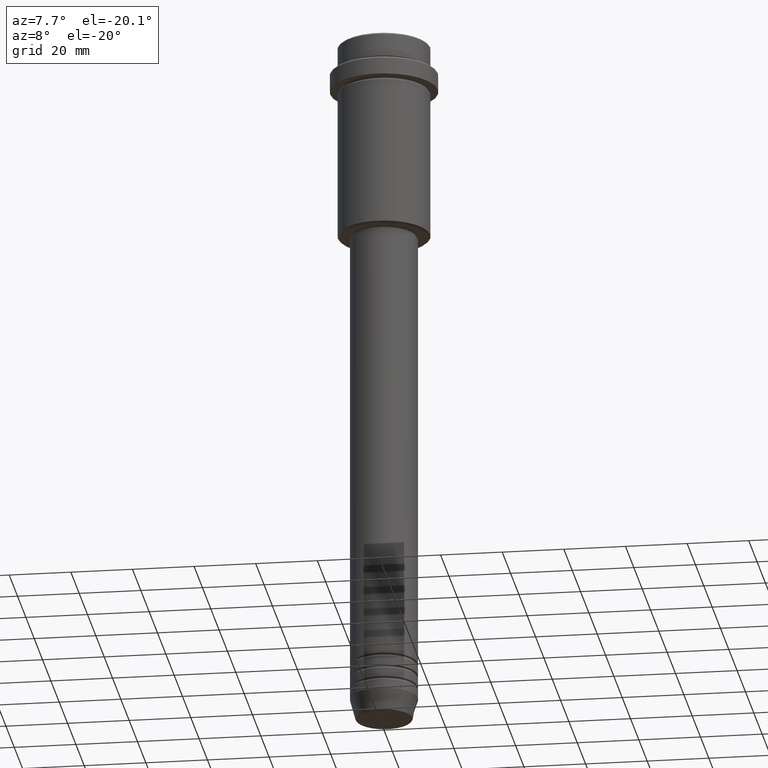
[diagram: clean part render]
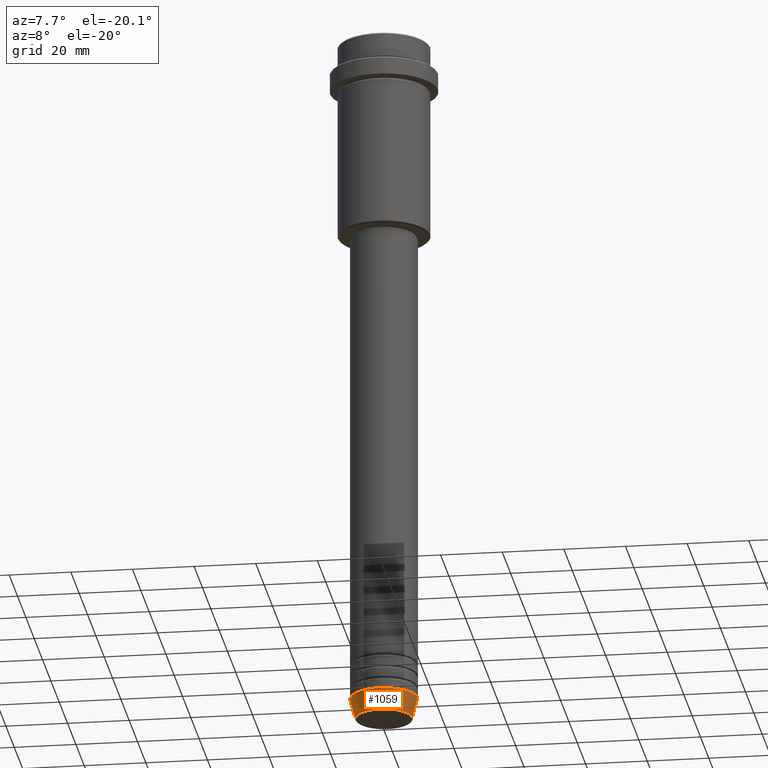
[diagram: same view with one face highlighted and labeled with its STEP entity id]
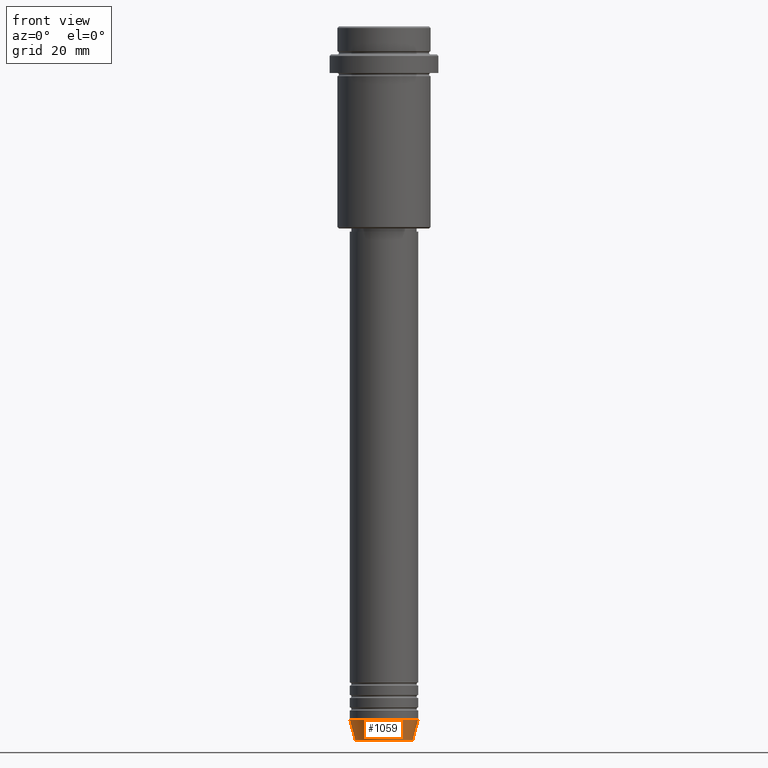
[diagram: same view with one face highlighted and labeled with its STEP entity id]
A machine part, auxiliary view. The second image highlights one B-rep face of the part: STEP entity #1059.
A second angle (front view) of the same face is appended — the face is thin or edge-on in the first view.
In plain terms, the highlighted conical surface has half-angle 15 deg.
Its self-contained STEP definition (entity closure, byte-faithful):
#108 = CONICAL_SURFACE ( 'NONE', #672, 11.00000000000000000, 0.2617993877991500740 ) ;
#134 = CARTESIAN_POINT ( 'NONE',  ( 9.223655072137196598, 0.000000000000000000, -229.6294095225512706 ) ) ;
#144 = ORIENTED_EDGE ( 'NONE', *, *, #183, .T. ) ;
#183 = EDGE_CURVE ( 'NONE', #1211, #1245, #1274, .T. ) ;
#194 = FACE_OUTER_BOUND ( 'NONE', #886, .T. ) ;
#328 = CARTESIAN_POINT ( 'NONE',  ( 0.000000000000000000, 0.000000000000000000, -229.6294095225512706 ) ) ;
#403 = CIRCLE ( 'NONE', #688, 11.00000000000000000 ) ;
#415 = CARTESIAN_POINT ( 'NONE',  ( 11.00000000000000000, 0.000000000000000000, -223.0000000000000000 ) ) ;
#436 = EDGE_CURVE ( 'NONE', #888, #1178, #403, .T. ) ;
#496 = DIRECTION ( 'NONE',  ( -0.000000000000000000, -0.000000000000000000, 1.000000000000000000 ) ) ;
#512 = EDGE_CURVE ( 'NONE', #1245, #1178, #852, .T. ) ;
#526 = ORIENTED_EDGE ( 'NONE', *, *, #512, .T. ) ;
#648 = CARTESIAN_POINT ( 'NONE',  ( 0.000000000000000000, 0.000000000000000000, -223.0000000000000000 ) ) ;
#672 = AXIS2_PLACEMENT_3D ( 'NONE', #648, #1080, #1264 ) ;
#687 = DIRECTION ( 'NONE',  ( -0.2588190451025213501, 3.169619151431772337E-17, 0.9659258262890680902 ) ) ;
#688 = AXIS2_PLACEMENT_3D ( 'NONE', #1238, #496, #1155 ) ;
#733 = AXIS2_PLACEMENT_3D ( 'NONE', #328, #765, #1189 ) ;
#765 = DIRECTION ( 'NONE',  ( -0.000000000000000000, -0.000000000000000000, 1.000000000000000000 ) ) ;
#813 = CARTESIAN_POINT ( 'NONE',  ( -11.00000000000000000, 1.347111479062088405E-15, -223.0000000000000000 ) ) ;
#852 = LINE ( 'NONE', #415, #1345 ) ;
#886 = EDGE_LOOP ( 'NONE', ( #1101, #144, #526, #1027 ) ) ;
#888 = VERTEX_POINT ( 'NONE', #1011 ) ;
#1011 = CARTESIAN_POINT ( 'NONE',  ( -11.00000000000000000, 1.347111479062088405E-15, -223.0000000000000000 ) ) ;
#1019 = LINE ( 'NONE', #813, #1139 ) ;
#1027 = ORIENTED_EDGE ( 'NONE', *, *, #436, .F. ) ;
#1052 = DIRECTION ( 'NONE',  ( 0.2588190451025213501, 0.000000000000000000, 0.9659258262890680902 ) ) ;
#1059 = ADVANCED_FACE ( 'NONE', ( #194 ), #108, .T. ) ;
#1080 = DIRECTION ( 'NONE',  ( -0.000000000000000000, -0.000000000000000000, 1.000000000000000000 ) ) ;
#1101 = ORIENTED_EDGE ( 'NONE', *, *, #1312, .F. ) ;
#1126 = CARTESIAN_POINT ( 'NONE',  ( -9.223655072137196598, 1.238341722557647793E-15, -229.6294095225512706 ) ) ;
#1139 = VECTOR ( 'NONE', #687, 1000.000000000000000 ) ;
#1155 = DIRECTION ( 'NONE',  ( 1.000000000000000000, 0.000000000000000000, 0.000000000000000000 ) ) ;
#1178 = VERTEX_POINT ( 'NONE', #1317 ) ;
#1189 = DIRECTION ( 'NONE',  ( 1.000000000000000000, 0.000000000000000000, 0.000000000000000000 ) ) ;
#1211 = VERTEX_POINT ( 'NONE', #1126 ) ;
#1238 = CARTESIAN_POINT ( 'NONE',  ( 0.000000000000000000, 0.000000000000000000, -223.0000000000000000 ) ) ;
#1245 = VERTEX_POINT ( 'NONE', #134 ) ;
#1264 = DIRECTION ( 'NONE',  ( 1.000000000000000000, 0.000000000000000000, 0.000000000000000000 ) ) ;
#1274 = CIRCLE ( 'NONE', #733, 9.223655072137196598 ) ;
#1312 = EDGE_CURVE ( 'NONE', #1211, #888, #1019, .T. ) ;
#1317 = CARTESIAN_POINT ( 'NONE',  ( 11.00000000000000000, 0.000000000000000000, -223.0000000000000000 ) ) ;
#1345 = VECTOR ( 'NONE', #1052, 1000.000000000000000 ) ;